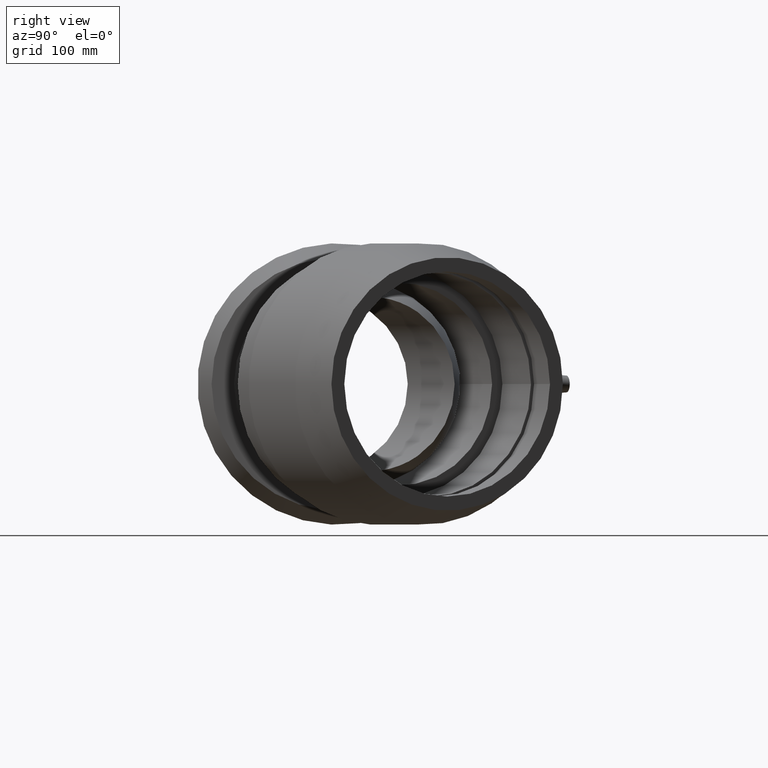
[diagram: clean part render]
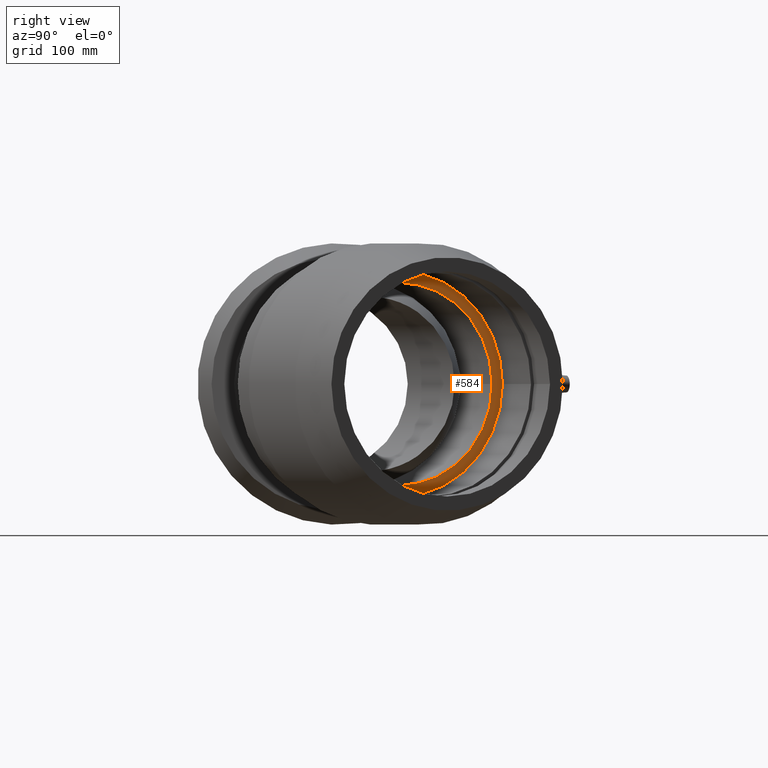
[diagram: same view with one face highlighted and labeled with its STEP entity id]
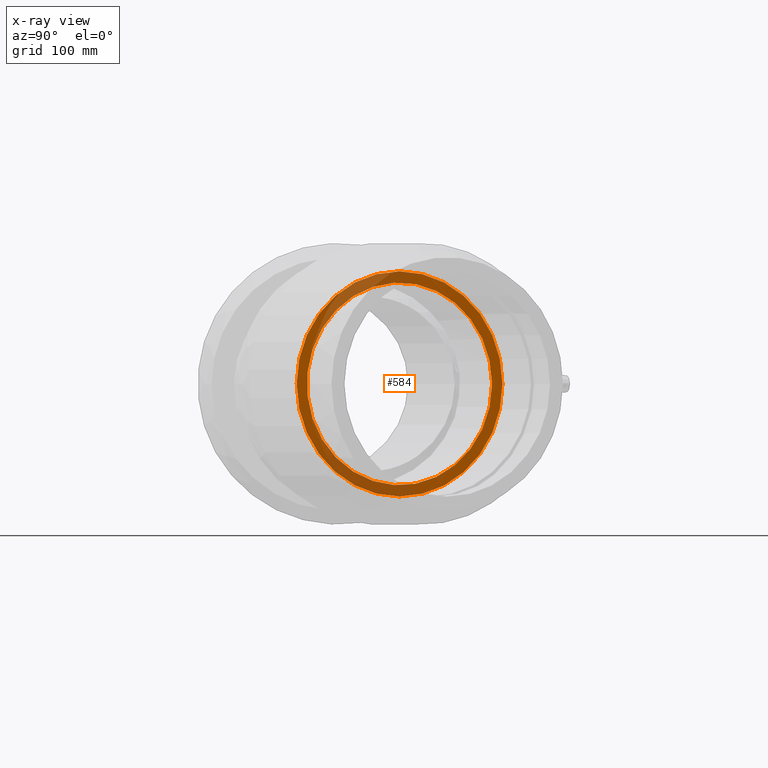
[diagram: x-ray of the same camera — body ghosted, the highlighted face saturated]
A machine part, right view. The second image highlights one B-rep face of the part: STEP entity #584.
The next image is the same camera in x-ray: the body ghosted, the highlighted face saturated — about 33% of this face is hidden behind the body in this view.
In plain terms, the highlighted planar face has unit normal (-0.9135, -0.4067, -0).
Its self-contained STEP definition (entity closure, byte-faithful):
#42=PLANE('',#678);
#105=FACE_BOUND('',#249,.T.);
#156=FACE_OUTER_BOUND('',#248,.T.);
#248=EDGE_LOOP('',(#524));
#249=EDGE_LOOP('',(#525));
#299=CIRCLE('',#649,90.);
#313=CIRCLE('',#679,100.);
#349=VERTEX_POINT('',#1246);
#365=VERTEX_POINT('',#1360);
#405=EDGE_CURVE('',#349,#349,#299,.T.);
#421=EDGE_CURVE('',#365,#365,#313,.T.);
#524=ORIENTED_EDGE('',*,*,#421,.T.);
#525=ORIENTED_EDGE('',*,*,#405,.F.);
#584=ADVANCED_FACE('',(#156,#105),#42,.F.);
#649=AXIS2_PLACEMENT_3D('',#1247,#805,#806);
#678=AXIS2_PLACEMENT_3D('',#1359,#863,#864);
#679=AXIS2_PLACEMENT_3D('',#1361,#865,#866);
#805=DIRECTION('center_axis',(0.913545457642601,0.406736643075801,1.19788532833232E-16));
#806=DIRECTION('ref_axis',(1.19788532833232E-16,2.54618386665284E-17,-1.));
#863=DIRECTION('center_axis',(-0.913545457642601,-0.406736643075801,-1.19788532833232E-16));
#864=DIRECTION('ref_axis',(0.,0.,1.));
#865=DIRECTION('center_axis',(0.913545457642601,0.406736643075801,1.19788532833232E-16));
#866=DIRECTION('ref_axis',(1.19788532833232E-16,2.54618386665284E-17,-1.));
#1246=CARTESIAN_POINT('',(221.038673758028,136.643129991436,1.37369283135442E-14));
#1247=CARTESIAN_POINT('Origin',(257.644971634851,54.4240388036023,1.60284937935317E-14));
#1359=CARTESIAN_POINT('Origin',(216.97130732727,145.778584567862,1.34823099268789E-14));
#1360=CARTESIAN_POINT('',(216.97130732727,145.778584567862,1.34823099268789E-14));
#1361=CARTESIAN_POINT('Origin',(257.644971634851,54.4240388036023,1.60284937935317E-14));